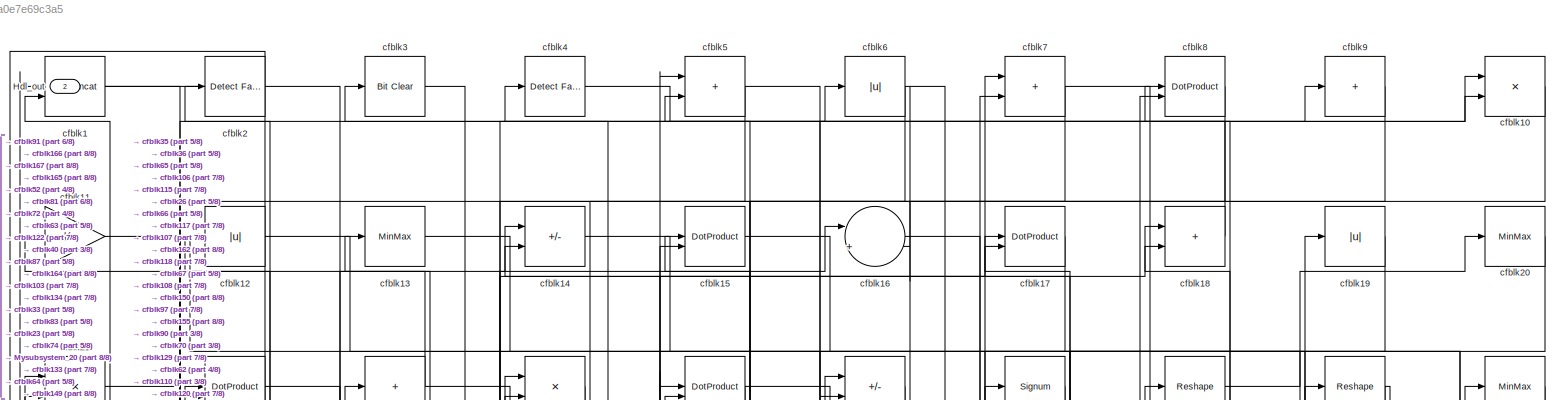
[diagram: root canvas - part 1/8, full width, top band]
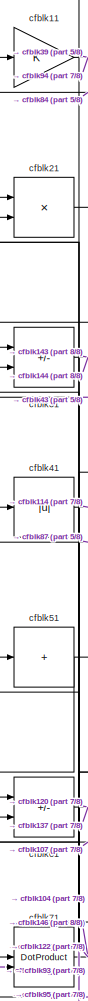
[diagram: root canvas - part 2/8, top left region]
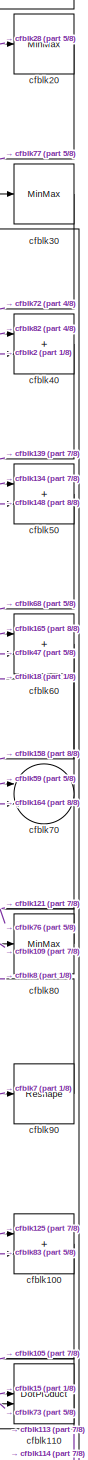
[diagram: root canvas - part 3/8, middle right region]
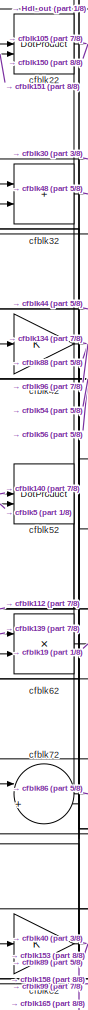
[diagram: root canvas - part 4/8, top left region]
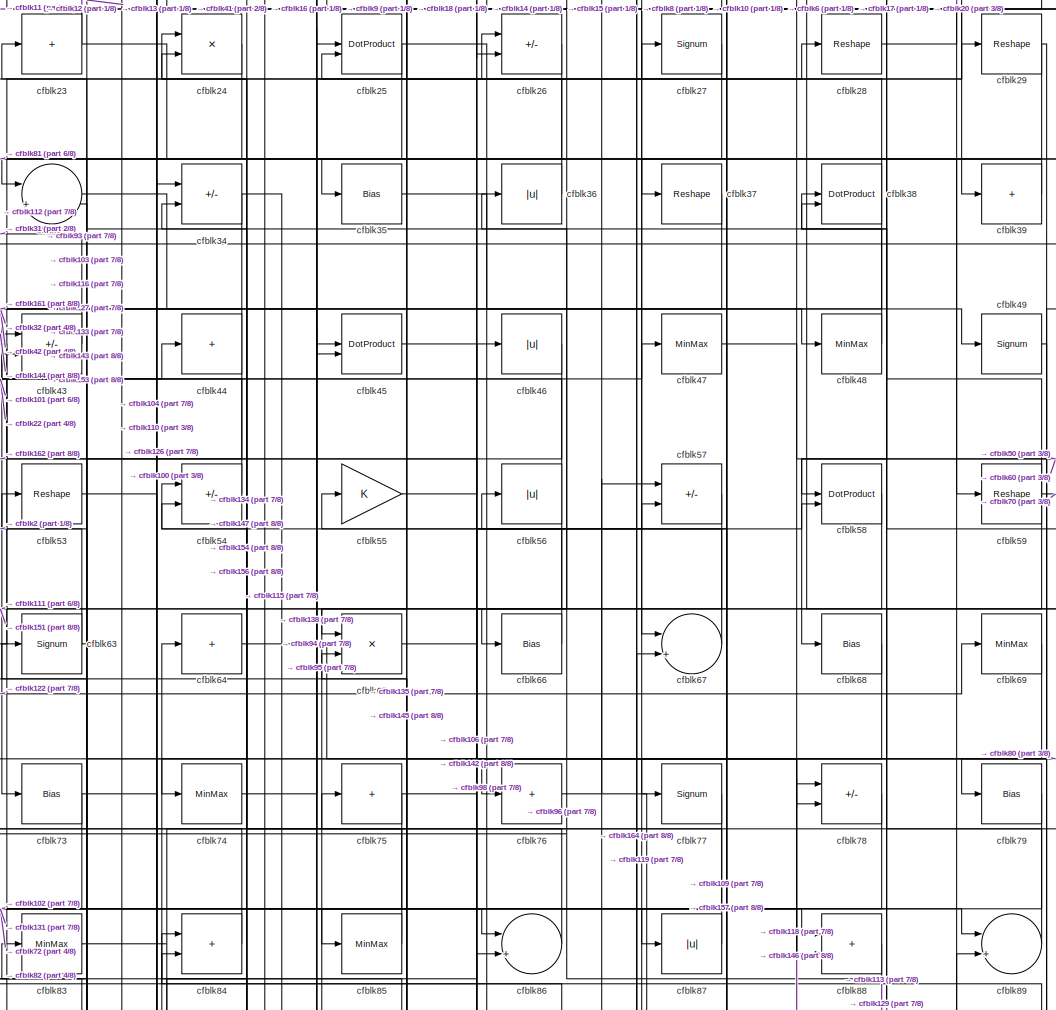
[diagram: root canvas - part 5/8, top center region]
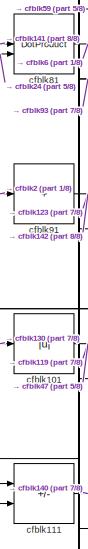
[diagram: root canvas - part 6/8, middle left region]
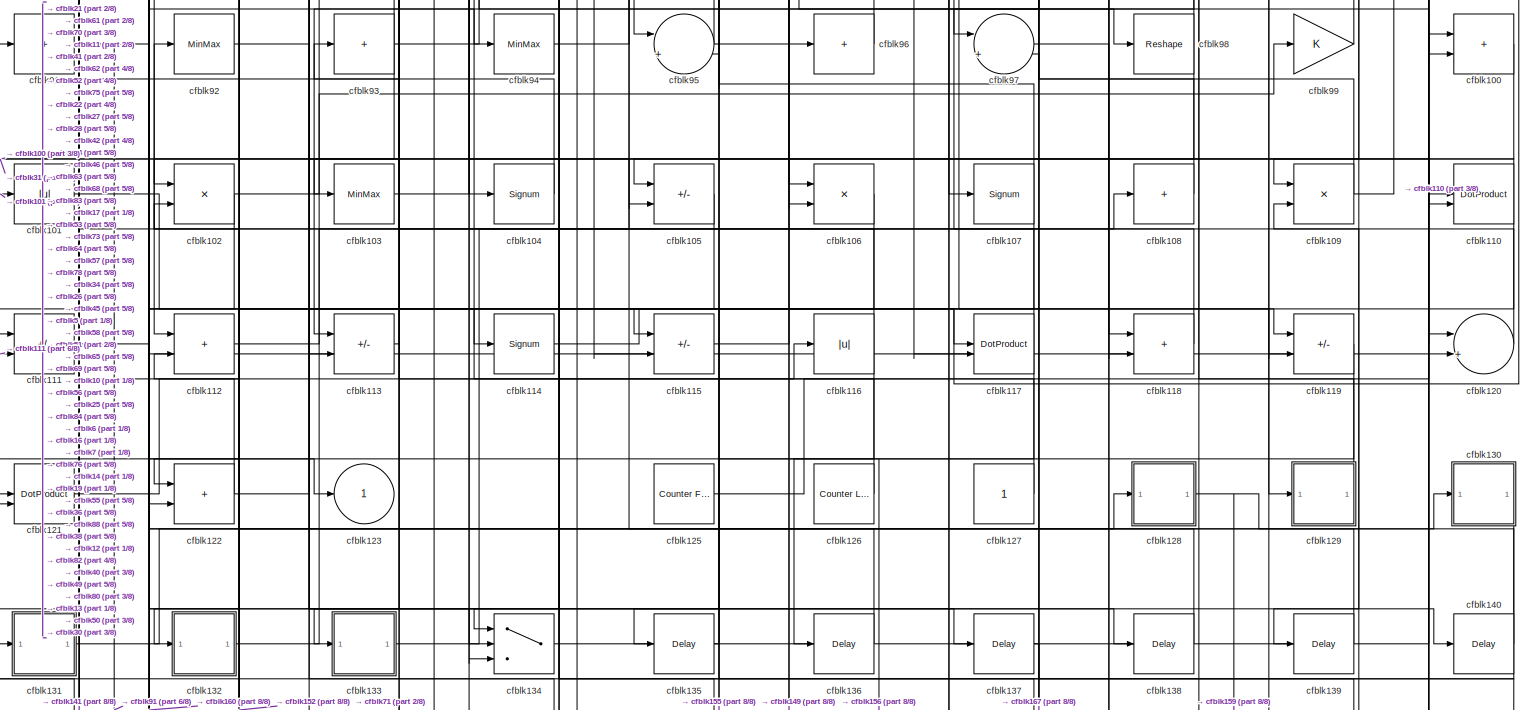
[diagram: root canvas - part 7/8, full width, bottom band]
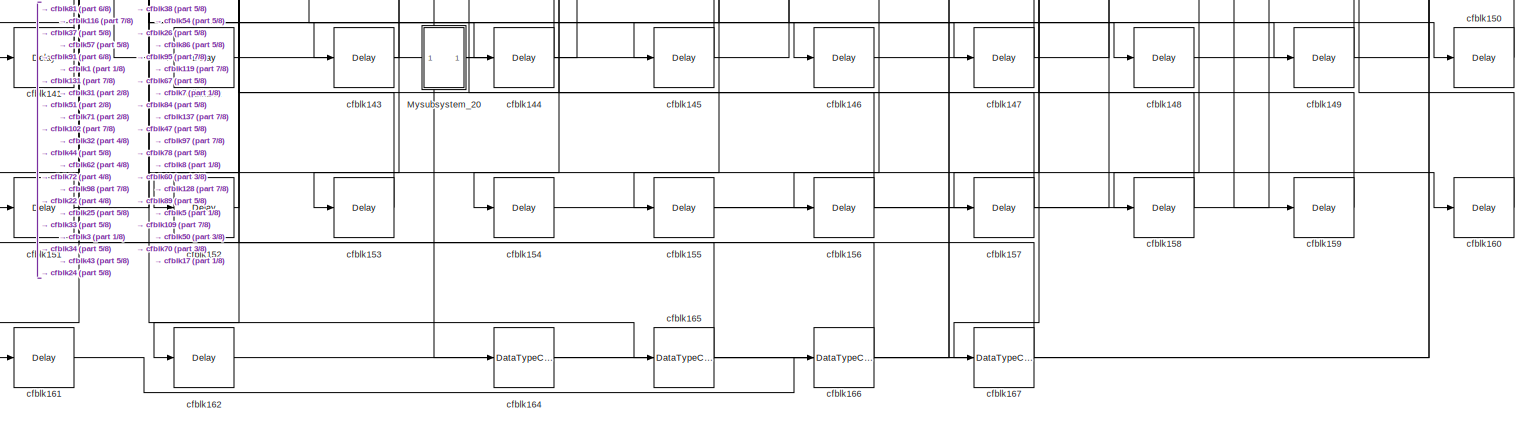
[diagram: root canvas - part 8/8, full width, bottom band]
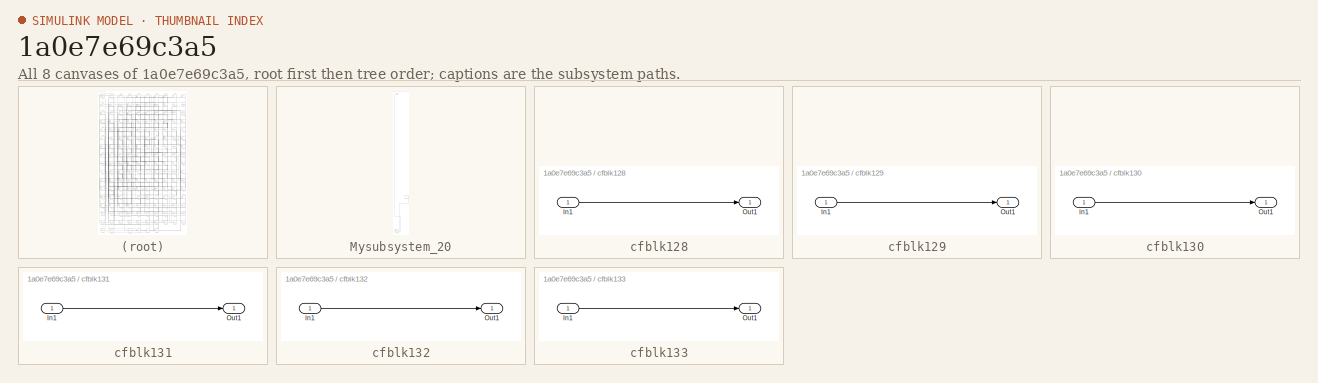
[diagram: thumbnail index - all 8 canvases of the model, root first then tree order]
MODEL slx_1a0e7e69c3a5
KIND model
CONFIG AbsTol = auto
CONFIG EnableMultiTasking = off
CONFIG FixedStep = auto
CONFIG MaxStep = auto
CONFIG MinStep = auto
CONFIG RelTol = 1e-3
CONFIG SampleTimeConstraint = Unconstrained
CONFIG SolverName = VariableStepAuto
CONFIG StartTime = 0.0
CONFIG StopTime = 10.0
BLOCK [Outport] Hdl_out
  OutDataTypeStr = uint8
  Port = 2
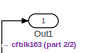
[diagram: Mysubsystem_20 - part 1/2, top left region]
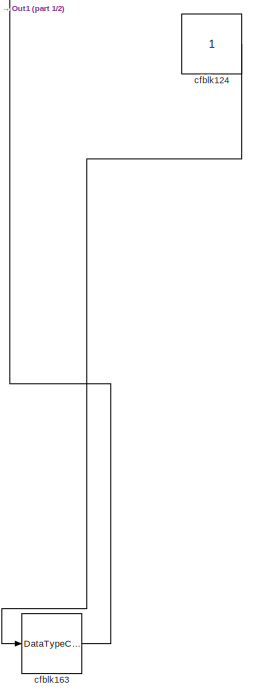
[diagram: Mysubsystem_20 - part 2/2, full width, bottom band]
BLOCK [SubSystem] Mysubsystem_20
  RTWFcnName = Mysubsystem_20
  RTWFcnNameOpts = User specified
  RTWFileNameOpts = Use function name
  RTWSystemCode = Reusable function
  TreatAsAtomicUnit = on
BLOCK [Outport] Mysubsystem_20/Out1
BLOCK [Constant] Mysubsystem_20/cfblk124
  SampleTime = -1
BLOCK [DataTypeConversion] Mysubsystem_20/cfblk163
  OutDataTypeStr = boolean
  RndMeth = Floor
  SaturateOnIntegerOverflow = off
BLOCK [Reference] cfblk1  REF=hdlsllib/Logic and Bit
Operations/Bit Concat
  SourceBlock = hdlsllib/Logic and Bit\nOperations/Bit Concat
  SourceType = Bit Concat
BLOCK [Product] cfblk10
  Inputs = */
  OutDataTypeStr = uint8
  RndMeth = Zero
  SaturateOnIntegerOverflow = on
BLOCK [Sum] cfblk100
  IconShape = rectangular
  OutDataTypeStr = uint8
BLOCK [Abs] cfblk101
  OutDataTypeStr = uint8
  SaturateOnIntegerOverflow = off
BLOCK [Product] cfblk102
  Inputs = */
  OutDataTypeStr = uint8
  RndMeth = Zero
  SaturateOnIntegerOverflow = on
BLOCK [MinMax] cfblk103
  OutDataTypeStr = uint8
BLOCK [Signum] cfblk104
BLOCK [Sum] cfblk105
  IconShape = rectangular
  Inputs = +-
  OutDataTypeStr = uint8
BLOCK [Product] cfblk106
  Inputs = */
  OutDataTypeStr = uint8
  RndMeth = Zero
  SaturateOnIntegerOverflow = on
BLOCK [Signum] cfblk107
BLOCK [Sum] cfblk108
  IconShape = rectangular
  Inputs = +
  OutDataTypeStr = uint8
BLOCK [Product] cfblk109
  Inputs = */
  OutDataTypeStr = uint8
  RndMeth = Zero
  SaturateOnIntegerOverflow = on
BLOCK [Gain] cfblk11
  OutDataTypeStr = uint8
BLOCK [DotProduct] cfblk110
  OutDataTypeStr = uint8
BLOCK [Sum] cfblk111
  IconShape = rectangular
  Inputs = +-
  OutDataTypeStr = uint8
BLOCK [Sum] cfblk112
  IconShape = rectangular
  OutDataTypeStr = uint8
BLOCK [Sum] cfblk113
  IconShape = rectangular
  Inputs = +-
  OutDataTypeStr = uint8
BLOCK [Signum] cfblk114
BLOCK [Sum] cfblk115
  IconShape = rectangular
  Inputs = +-
  OutDataTypeStr = uint8
BLOCK [Abs] cfblk116
  OutDataTypeStr = uint8
  SaturateOnIntegerOverflow = off
BLOCK [DotProduct] cfblk117
  OutDataTypeStr = uint8
BLOCK [Sum] cfblk118
  IconShape = rectangular
  OutDataTypeStr = uint8
BLOCK [Sum] cfblk119
  IconShape = rectangular
  Inputs = +-
  OutDataTypeStr = uint8
BLOCK [Abs] cfblk12
  OutDataTypeStr = uint8
  SaturateOnIntegerOverflow = off
BLOCK [Sum] cfblk120
  Inputs = |++
  OutDataTypeStr = uint8
BLOCK [DotProduct] cfblk121
  OutDataTypeStr = uint8
BLOCK [Sum] cfblk122
  IconShape = rectangular
  OutDataTypeStr = uint8
BLOCK [Outport] cfblk123
  OutDataTypeStr = uint8
  VectorParamsAs1DForOutWhenUnconnected = off
BLOCK [Reference] cfblk125  REF=hdlsllib/Sources/Counter
Free-Running
  SourceBlock = hdlsllib/Sources/Counter\nFree-Running
  SourceType = Counter Free-Running
BLOCK [Reference] cfblk126  REF=hdlsllib/Sources/Counter
Limited
  SourceBlock = hdlsllib/Sources/Counter\nLimited
  SourceType = Counter Limited
BLOCK [Constant] cfblk127
  OutDataTypeStr = uint8
  SampleTime = -1
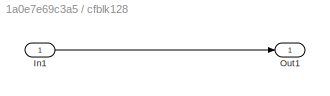
BLOCK [SubSystem] cfblk128
  LibrarySourceBlock = hdlsllib/Ports &\nSubsystems/Subsystem
BLOCK [Inport] cfblk128/In1
BLOCK [Outport] cfblk128/Out1
BLOCK [SubSystem] cfblk129
  LibrarySourceBlock = hdlsllib/Ports &\nSubsystems/Subsystem
BLOCK [Inport] cfblk129/In1
BLOCK [Outport] cfblk129/Out1
BLOCK [MinMax] cfblk13
  OutDataTypeStr = uint8
BLOCK [SubSystem] cfblk130
  LibrarySourceBlock = hdlsllib/Ports &\nSubsystems/Subsystem
BLOCK [Inport] cfblk130/In1
BLOCK [Outport] cfblk130/Out1
BLOCK [SubSystem] cfblk131
  LibrarySourceBlock = hdlsllib/Ports &\nSubsystems/Subsystem
BLOCK [Inport] cfblk131/In1
BLOCK [Outport] cfblk131/Out1
BLOCK [SubSystem] cfblk132
  LibrarySourceBlock = hdlsllib/Ports &\nSubsystems/Subsystem
BLOCK [Inport] cfblk132/In1
BLOCK [Outport] cfblk132/Out1
BLOCK [SubSystem] cfblk133
  LibrarySourceBlock = hdlsllib/Ports &\nSubsystems/Subsystem
BLOCK [Inport] cfblk133/In1
BLOCK [Outport] cfblk133/Out1
BLOCK [Switch] cfblk134
  InputSameDT = off
  OutDataTypeStr = uint8
  SaturateOnIntegerOverflow = off
BLOCK [Delay] cfblk135
  InputPortMap = u0
  SampleTime = 1
BLOCK [Delay] cfblk136
  InputPortMap = u0
  SampleTime = 1
BLOCK [Delay] cfblk137
  InputPortMap = u0
  SampleTime = 1
BLOCK [Delay] cfblk138
  InputPortMap = u0
  SampleTime = 1
BLOCK [Delay] cfblk139
  InputPortMap = u0
  SampleTime = 1
BLOCK [Sum] cfblk14
  IconShape = rectangular
  Inputs = +-
  OutDataTypeStr = uint8
BLOCK [Delay] cfblk140
  InputPortMap = u0
  SampleTime = 1
BLOCK [Delay] cfblk141
  InputPortMap = u0
  SampleTime = 1
BLOCK [Delay] cfblk142
  InputPortMap = u0
  SampleTime = 1
BLOCK [Delay] cfblk143
  InputPortMap = u0
  SampleTime = 1
BLOCK [Delay] cfblk144
  InputPortMap = u0
  SampleTime = 1
BLOCK [Delay] cfblk145
  InputPortMap = u0
  SampleTime = 1
BLOCK [Delay] cfblk146
  InputPortMap = u0
  SampleTime = 1
BLOCK [Delay] cfblk147
  InputPortMap = u0
  SampleTime = 1
BLOCK [Delay] cfblk148
  InputPortMap = u0
  SampleTime = 1
BLOCK [Delay] cfblk149
  InputPortMap = u0
  SampleTime = 1
BLOCK [DotProduct] cfblk15
  OutDataTypeStr = uint8
BLOCK [Delay] cfblk150
  InputPortMap = u0
  SampleTime = 1
BLOCK [Delay] cfblk151
  InputPortMap = u0
  SampleTime = 1
BLOCK [Delay] cfblk152
  InputPortMap = u0
  SampleTime = 1
BLOCK [Delay] cfblk153
  InputPortMap = u0
  SampleTime = 1
BLOCK [Delay] cfblk154
  InputPortMap = u0
  SampleTime = 1
BLOCK [Delay] cfblk155
  InputPortMap = u0
  SampleTime = 1
BLOCK [Delay] cfblk156
  InputPortMap = u0
  SampleTime = 1
BLOCK [Delay] cfblk157
  InputPortMap = u0
  SampleTime = 1
BLOCK [Delay] cfblk158
  InputPortMap = u0
  SampleTime = 1
BLOCK [Delay] cfblk159
  InputPortMap = u0
  SampleTime = 1
BLOCK [Sum] cfblk16
  Inputs = |++
  OutDataTypeStr = uint8
BLOCK [Delay] cfblk160
  InputPortMap = u0
  SampleTime = 1
BLOCK [Delay] cfblk161
  InputPortMap = u0
  SampleTime = 1
BLOCK [Delay] cfblk162
  InputPortMap = u0
  SampleTime = 1
BLOCK [DataTypeConversion] cfblk164
  OutDataTypeStr = uint8
  RndMeth = Floor
  SaturateOnIntegerOverflow = off
BLOCK [DataTypeConversion] cfblk165
  OutDataTypeStr = uint8
  RndMeth = Floor
  SaturateOnIntegerOverflow = off
BLOCK [DataTypeConversion] cfblk166
  OutDataTypeStr = uint8
  RndMeth = Floor
  SaturateOnIntegerOverflow = off
BLOCK [DataTypeConversion] cfblk167
  OutDataTypeStr = uint8
  RndMeth = Floor
  SaturateOnIntegerOverflow = off
BLOCK [DotProduct] cfblk17
  OutDataTypeStr = uint8
BLOCK [Sum] cfblk18
  IconShape = rectangular
  OutDataTypeStr = uint8
BLOCK [Abs] cfblk19
  OutDataTypeStr = uint8
  SaturateOnIntegerOverflow = off
BLOCK [Reference] cfblk2  REF=hdlsllib/Logic and Bit
Operations/Detect Fall
Nonpositive
  SourceBlock = hdlsllib/Logic and Bit\nOperations/Detect Fall\nNonpositive
  SourceType = Detect Fall Nonpositive
BLOCK [MinMax] cfblk20
  OutDataTypeStr = uint8
BLOCK [Product] cfblk21
  Inputs = */
  OutDataTypeStr = uint8
  RndMeth = Zero
  SaturateOnIntegerOverflow = on
BLOCK [DotProduct] cfblk22
  OutDataTypeStr = uint8
BLOCK [Sum] cfblk23
  IconShape = rectangular
  Inputs = +
  OutDataTypeStr = uint8
BLOCK [Product] cfblk24
  Inputs = */
  OutDataTypeStr = uint8
  RndMeth = Zero
  SaturateOnIntegerOverflow = on
BLOCK [DotProduct] cfblk25
  OutDataTypeStr = uint8
BLOCK [Sum] cfblk26
  IconShape = rectangular
  Inputs = +-
  OutDataTypeStr = uint8
BLOCK [Signum] cfblk27
BLOCK [Reshape] cfblk28
BLOCK [Reshape] cfblk29
BLOCK [Reference] cfblk3  REF=simulink/Logic and Bit
Operations/Bit Clear
  LibrarySourceBlock = hdlsllib/Logic and Bit\nOperations/Bit Clear
  SourceBlock = simulink/Logic and Bit\nOperations/Bit Clear
  SourceType = Bit Clear
BLOCK [MinMax] cfblk30
  OutDataTypeStr = uint8
BLOCK [Sum] cfblk31
  IconShape = rectangular
  Inputs = +-
  OutDataTypeStr = uint8
BLOCK [Sum] cfblk32
  IconShape = rectangular
  OutDataTypeStr = uint8
BLOCK [Sum] cfblk33
  Inputs = |++
  OutDataTypeStr = uint8
BLOCK [Sum] cfblk34
  IconShape = rectangular
  Inputs = +-
  OutDataTypeStr = uint8
BLOCK [Bias] cfblk35
  Bias = 0.0
  SaturateOnIntegerOverflow = off
BLOCK [Abs] cfblk36
  OutDataTypeStr = uint8
  SaturateOnIntegerOverflow = off
BLOCK [Reshape] cfblk37
BLOCK [DotProduct] cfblk38
  OutDataTypeStr = uint8
BLOCK [Sum] cfblk39
  IconShape = rectangular
  Inputs = +
  OutDataTypeStr = uint8
BLOCK [Reference] cfblk4  REF=hdlsllib/Logic and Bit
Operations/Detect Fall
Nonpositive
  SourceBlock = hdlsllib/Logic and Bit\nOperations/Detect Fall\nNonpositive
  SourceType = Detect Fall Nonpositive
BLOCK [Sum] cfblk40
  IconShape = rectangular
  OutDataTypeStr = uint8
BLOCK [Abs] cfblk41
  OutDataTypeStr = uint8
  SaturateOnIntegerOverflow = off
BLOCK [Gain] cfblk42
  OutDataTypeStr = uint8
BLOCK [Sum] cfblk43
  IconShape = rectangular
  Inputs = +-
  OutDataTypeStr = uint8
BLOCK [Sum] cfblk44
  IconShape = rectangular
  Inputs = +
  OutDataTypeStr = uint8
BLOCK [DotProduct] cfblk45
  OutDataTypeStr = uint8
BLOCK [Abs] cfblk46
  OutDataTypeStr = uint8
  SaturateOnIntegerOverflow = off
BLOCK [MinMax] cfblk47
  OutDataTypeStr = uint8
BLOCK [MinMax] cfblk48
  OutDataTypeStr = uint8
BLOCK [Signum] cfblk49
BLOCK [Sum] cfblk5
  IconShape = rectangular
  OutDataTypeStr = uint8
BLOCK [Sum] cfblk50
  IconShape = rectangular
  OutDataTypeStr = uint8
BLOCK [Sum] cfblk51
  IconShape = rectangular
  Inputs = +
  OutDataTypeStr = uint8
BLOCK [DotProduct] cfblk52
  OutDataTypeStr = uint8
BLOCK [Reshape] cfblk53
BLOCK [Sum] cfblk54
  IconShape = rectangular
  Inputs = +-
  OutDataTypeStr = uint8
BLOCK [Gain] cfblk55
  OutDataTypeStr = uint8
BLOCK [Abs] cfblk56
  OutDataTypeStr = uint8
  SaturateOnIntegerOverflow = off
BLOCK [Sum] cfblk57
  IconShape = rectangular
  Inputs = +-
  OutDataTypeStr = uint8
BLOCK [DotProduct] cfblk58
  OutDataTypeStr = uint8
BLOCK [Reshape] cfblk59
BLOCK [Abs] cfblk6
  OutDataTypeStr = uint8
  SaturateOnIntegerOverflow = off
BLOCK [Sum] cfblk60
  IconShape = rectangular
  OutDataTypeStr = uint8
BLOCK [Sum] cfblk61
  IconShape = rectangular
  Inputs = +-
  OutDataTypeStr = uint8
BLOCK [Product] cfblk62
  Inputs = */
  OutDataTypeStr = uint8
  RndMeth = Zero
  SaturateOnIntegerOverflow = on
BLOCK [Signum] cfblk63
BLOCK [Sum] cfblk64
  IconShape = rectangular
  Inputs = +
  OutDataTypeStr = uint8
BLOCK [Product] cfblk65
  Inputs = */
  OutDataTypeStr = uint8
  RndMeth = Zero
  SaturateOnIntegerOverflow = on
BLOCK [Bias] cfblk66
  Bias = 0.0
  SaturateOnIntegerOverflow = off
BLOCK [Sum] cfblk67
  Inputs = |++
  OutDataTypeStr = uint8
BLOCK [Bias] cfblk68
  Bias = 0.0
  SaturateOnIntegerOverflow = off
BLOCK [MinMax] cfblk69
  OutDataTypeStr = uint8
BLOCK [Sum] cfblk7
  IconShape = rectangular
  OutDataTypeStr = uint8
BLOCK [Sum] cfblk70
  Inputs = |++
  OutDataTypeStr = uint8
BLOCK [DotProduct] cfblk71
  OutDataTypeStr = uint8
BLOCK [Sum] cfblk72
  Inputs = |++
  OutDataTypeStr = uint8
BLOCK [Bias] cfblk73
  Bias = 0.0
  SaturateOnIntegerOverflow = off
BLOCK [MinMax] cfblk74
  OutDataTypeStr = uint8
BLOCK [Sum] cfblk75
  IconShape = rectangular
  Inputs = +
  OutDataTypeStr = uint8
BLOCK [Sum] cfblk76
  IconShape = rectangular
  Inputs = +
  OutDataTypeStr = uint8
BLOCK [Signum] cfblk77
BLOCK [Sum] cfblk78
  IconShape = rectangular
  Inputs = +-
  OutDataTypeStr = uint8
BLOCK [Bias] cfblk79
  Bias = 0.0
  SaturateOnIntegerOverflow = off
BLOCK [DotProduct] cfblk8
  OutDataTypeStr = uint8
BLOCK [MinMax] cfblk80
  OutDataTypeStr = uint8
BLOCK [DotProduct] cfblk81
  OutDataTypeStr = uint8
BLOCK [Gain] cfblk82
  OutDataTypeStr = uint8
BLOCK [MinMax] cfblk83
  OutDataTypeStr = uint8
BLOCK [Sum] cfblk84
  IconShape = rectangular
  OutDataTypeStr = uint8
BLOCK [MinMax] cfblk85
  OutDataTypeStr = uint8
BLOCK [Sum] cfblk86
  Inputs = |++
  OutDataTypeStr = uint8
BLOCK [Abs] cfblk87
  OutDataTypeStr = uint8
  SaturateOnIntegerOverflow = off
BLOCK [Sum] cfblk88
  IconShape = rectangular
  OutDataTypeStr = uint8
BLOCK [Sum] cfblk89
  Inputs = |++
  OutDataTypeStr = uint8
BLOCK [Sum] cfblk9
  IconShape = rectangular
  Inputs = +
  OutDataTypeStr = uint8
BLOCK [Reshape] cfblk90
BLOCK [Sum] cfblk91
  IconShape = rectangular
  Inputs = +
  OutDataTypeStr = uint8
BLOCK [MinMax] cfblk92
  OutDataTypeStr = uint8
BLOCK [Sum] cfblk93
  IconShape = rectangular
  Inputs = +
  OutDataTypeStr = uint8
BLOCK [MinMax] cfblk94
  OutDataTypeStr = uint8
BLOCK [Sum] cfblk95
  Inputs = |++
  OutDataTypeStr = uint8
BLOCK [Sum] cfblk96
  IconShape = rectangular
  Inputs = +
  OutDataTypeStr = uint8
BLOCK [Sum] cfblk97
  Inputs = |++
  OutDataTypeStr = uint8
BLOCK [Reshape] cfblk98
BLOCK [Gain] cfblk99
  OutDataTypeStr = uint8
LINE Mysubsystem_20/cfblk124:1 -> Mysubsystem_20/cfblk163:1
LINE Mysubsystem_20/cfblk163:1 -> Mysubsystem_20/Out1:1
LINE Mysubsystem_20:1 -> cfblk3:1
LINE cfblk100:1 -> cfblk121:2
NET cfblk101:1 -> cfblk119:2, cfblk47:1
NET cfblk102:1 -> cfblk122:2, cfblk27:1, cfblk28:1, cfblk99:1
NET cfblk103:1 -> cfblk17:1, cfblk53:1
LINE cfblk104:1 -> cfblk21:1
LINE cfblk105:1 -> cfblk122:1
LINE cfblk106:1 -> cfblk135:1
NET cfblk107:1 -> cfblk115:1, cfblk132:1, cfblk61:1
LINE cfblk108:1 -> cfblk14:1
NET cfblk109:1 -> cfblk55:1, cfblk80:1
LINE cfblk10:1 -> cfblk66:1
NET cfblk110:1 -> cfblk105:1, cfblk113:2
LINE cfblk111:1 -> cfblk140:1
LINE cfblk112:1 -> cfblk44:1
LINE cfblk113:1 -> cfblk93:1
LINE cfblk114:1 -> cfblk30:1
LINE cfblk115:1 -> cfblk10:1
NET cfblk116:1 -> cfblk141:1, cfblk63:1
NET cfblk117:1 -> cfblk136:1, cfblk61:2
LINE cfblk118:1 -> cfblk7:1
NET cfblk119:1 -> cfblk155:1, cfblk156:1
NET cfblk11:1 -> cfblk39:1, cfblk94:1
LINE cfblk120:1 -> cfblk92:1
LINE cfblk121:1 -> cfblk116:1
NET cfblk122:1 -> cfblk14:2, cfblk21:2, cfblk69:1
LINE cfblk125:1 -> cfblk100:1
LINE cfblk126:1 -> cfblk64:1
LINE cfblk127:1 -> cfblk83:1
LINE cfblk128/In1:1 -> cfblk128/Out1:1
NET cfblk128:1 -> cfblk130:1, cfblk159:1
LINE cfblk129/In1:1 -> cfblk129/Out1:1
LINE cfblk129:1 -> cfblk38:1
LINE cfblk12:1 -> cfblk129:1
LINE cfblk130/In1:1 -> cfblk130/Out1:1
LINE cfblk130:1 -> cfblk101:1
LINE cfblk131/In1:1 -> cfblk131/Out1:1
NET cfblk131:1 -> cfblk128:1, cfblk160:1
LINE cfblk132/In1:1 -> cfblk132/Out1:1
LINE cfblk132:1 -> cfblk108:1
LINE cfblk133/In1:1 -> cfblk133/Out1:1
LINE cfblk133:1 -> cfblk5:1
LINE cfblk134:1 -> cfblk50:1
LINE cfblk135:1 -> cfblk65:2
LINE cfblk136:1 -> cfblk112:2
LINE cfblk137:1 -> cfblk167:1
LINE cfblk138:1 -> cfblk45:1
LINE cfblk139:1 -> cfblk62:1
LINE cfblk13:1 -> cfblk120:1
LINE cfblk140:1 -> cfblk52:1
LINE cfblk141:1 -> cfblk81:1
LINE cfblk142:1 -> cfblk86:2
LINE cfblk143:1 -> cfblk33:2
LINE cfblk144:1 -> cfblk43:1
LINE cfblk145:1 -> cfblk54:2
LINE cfblk146:1 -> cfblk78:1
LINE cfblk147:1 -> cfblk84:2
LINE cfblk148:1 -> cfblk50:2
LINE cfblk149:1 -> cfblk5:2
LINE cfblk14:1 -> cfblk26:2
LINE cfblk150:1 -> cfblk17:2
LINE cfblk151:1 -> cfblk22:2
LINE cfblk152:1 -> cfblk102:2
LINE cfblk153:1 -> cfblk32:2
LINE cfblk154:1 -> cfblk89:2
LINE cfblk155:1 -> cfblk8:2
LINE cfblk156:1 -> cfblk24:2
LINE cfblk157:1 -> cfblk34:1
LINE cfblk158:1 -> cfblk72:1
LINE cfblk159:1 -> cfblk97:2
LINE cfblk15:1 -> cfblk110:1
LINE cfblk160:1 -> cfblk109:2
LINE cfblk161:1 -> cfblk166:1
LINE cfblk162:1 -> cfblk7:2
NET cfblk164:1 -> cfblk67:2, cfblk70:2
NET cfblk165:1 -> cfblk60:1, cfblk62:2
LINE cfblk166:1 -> cfblk1:1
LINE cfblk167:1 -> cfblk1:2
LINE cfblk16:1 -> cfblk107:1
LINE cfblk17:1 -> cfblk67:1
LINE cfblk18:1 -> cfblk4:1
LINE cfblk19:1 -> cfblk97:1
LINE cfblk1:1 -> cfblk165:1
LINE cfblk20:1 -> cfblk77:1
LINE cfblk21:1 -> cfblk117:1
NET cfblk22:1 -> cfblk105:2, cfblk150:1, cfblk88:2
NET cfblk23:1 -> cfblk12:1, cfblk59:1
LINE cfblk24:1 -> cfblk81:2
NET cfblk25:1 -> cfblk153:1, cfblk98:1
LINE cfblk26:1 -> cfblk145:1
LINE cfblk27:1 -> cfblk37:1
LINE cfblk28:1 -> cfblk20:1
NET cfblk29:1 -> cfblk58:1, cfblk79:1
NET cfblk2:1 -> cfblk40:2, cfblk91:1
LINE cfblk30:1 -> cfblk72:2
NET cfblk31:1 -> cfblk143:1, cfblk144:1
LINE cfblk32:1 -> cfblk48:1
NET cfblk33:1 -> cfblk16:1, cfblk45:2
NET cfblk34:1 -> cfblk115:2, cfblk73:1
LINE cfblk35:1 -> cfblk49:1
LINE cfblk36:1 -> cfblk15:1
LINE cfblk37:1 -> cfblk161:1
NET cfblk38:1 -> cfblk154:1, cfblk25:2
LINE cfblk39:1 -> cfblk33:1
LINE cfblk3:1 -> cfblk164:1
LINE cfblk40:1 -> cfblk139:1
LINE cfblk41:1 -> cfblk114:1
NET cfblk42:1 -> cfblk134:3, cfblk88:1, cfblk96:1
LINE cfblk43:1 -> cfblk31:1
NET cfblk44:1 -> cfblk162:1, cfblk42:1
LINE cfblk45:1 -> cfblk78:2
LINE cfblk46:1 -> cfblk133:1
NET cfblk47:1 -> cfblk157:1, cfblk60:2
LINE cfblk48:1 -> cfblk23:1
LINE cfblk49:1 -> cfblk109:1
LINE cfblk4:1 -> cfblk10:2
LINE cfblk50:1 -> cfblk68:1
NET cfblk51:1 -> cfblk148:1, cfblk71:2
LINE cfblk52:1 -> cfblk112:1
LINE cfblk53:1 -> cfblk104:1
LINE cfblk54:1 -> cfblk32:1
LINE cfblk55:1 -> cfblk29:1
NET cfblk56:1 -> cfblk106:2, cfblk22:1
LINE cfblk57:1 -> cfblk151:1
LINE cfblk58:1 -> cfblk95:1
NET cfblk59:1 -> cfblk111:1, cfblk38:2, cfblk70:1
NET cfblk5:1 -> cfblk106:1, cfblk52:2
LINE cfblk60:1 -> cfblk158:1
NET cfblk61:1 -> cfblk120:2, cfblk137:1
LINE cfblk62:1 -> cfblk19:1
NET cfblk63:1 -> cfblk2:1, cfblk43:2
NET cfblk64:1 -> cfblk118:2, cfblk18:2
LINE cfblk65:1 -> cfblk46:1
LINE cfblk66:1 -> cfblk56:1
LINE cfblk67:1 -> cfblk24:1
LINE cfblk68:1 -> cfblk103:1
LINE cfblk69:1 -> cfblk95:2
NET cfblk6:1 -> cfblk117:2, cfblk16:2, cfblk35:1
NET cfblk70:1 -> cfblk121:1, cfblk18:1
NET cfblk71:1 -> cfblk146:1, cfblk147:1
NET cfblk72:1 -> Hdl_out:1, cfblk86:1
NET cfblk73:1 -> cfblk110:2, cfblk131:1
LINE cfblk74:1 -> cfblk15:2
NET cfblk75:1 -> cfblk102:1, cfblk58:2
NET cfblk76:1 -> cfblk119:1, cfblk57:1
LINE cfblk77:1 -> cfblk85:1
LINE cfblk78:1 -> cfblk134:1
LINE cfblk79:1 -> cfblk87:1
NET cfblk7:1 -> cfblk134:2, cfblk90:1
LINE cfblk80:1 -> cfblk76:1
LINE cfblk81:1 -> cfblk6:1
NET cfblk82:1 -> cfblk40:1, cfblk89:1
NET cfblk83:1 -> cfblk100:2, cfblk25:1, cfblk9:1
LINE cfblk84:1 -> cfblk11:1
LINE cfblk85:1 -> cfblk34:2
LINE cfblk86:1 -> cfblk75:1
NET cfblk87:1 -> cfblk13:1, cfblk41:1
LINE cfblk88:1 -> cfblk113:1
LINE cfblk89:1 -> cfblk54:1
LINE cfblk8:1 -> cfblk65:1
LINE cfblk90:1 -> cfblk8:1
NET cfblk91:1 -> cfblk123:1, cfblk142:1
LINE cfblk92:1 -> cfblk138:1
NET cfblk93:1 -> cfblk111:2, cfblk31:2, cfblk57:2
LINE cfblk94:1 -> cfblk26:1
NET cfblk95:1 -> cfblk149:1, cfblk51:1
LINE cfblk96:1 -> cfblk84:1
LINE cfblk97:1 -> cfblk118:1
NET cfblk98:1 -> cfblk152:1, cfblk36:1, cfblk71:1
LINE cfblk99:1 -> cfblk82:1
LINE cfblk9:1 -> cfblk74:1
note: NET lines group one-source signal fan-out (src -> all destinations, sorted); 1:1 wires keep LINE
